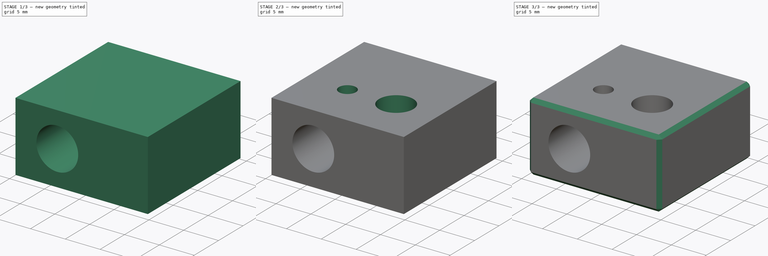
[diagram: build sequence overview — one tinted view per stage of 3, left to right]
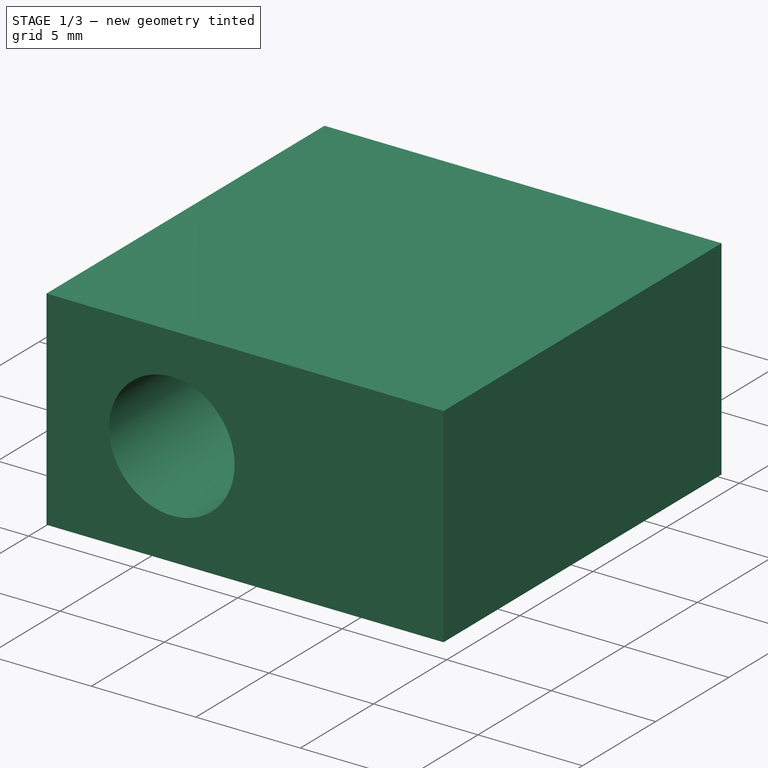
[diagram: stage 1 of 3 — iso view after this stage's code; geometry added in this stage tinted green]
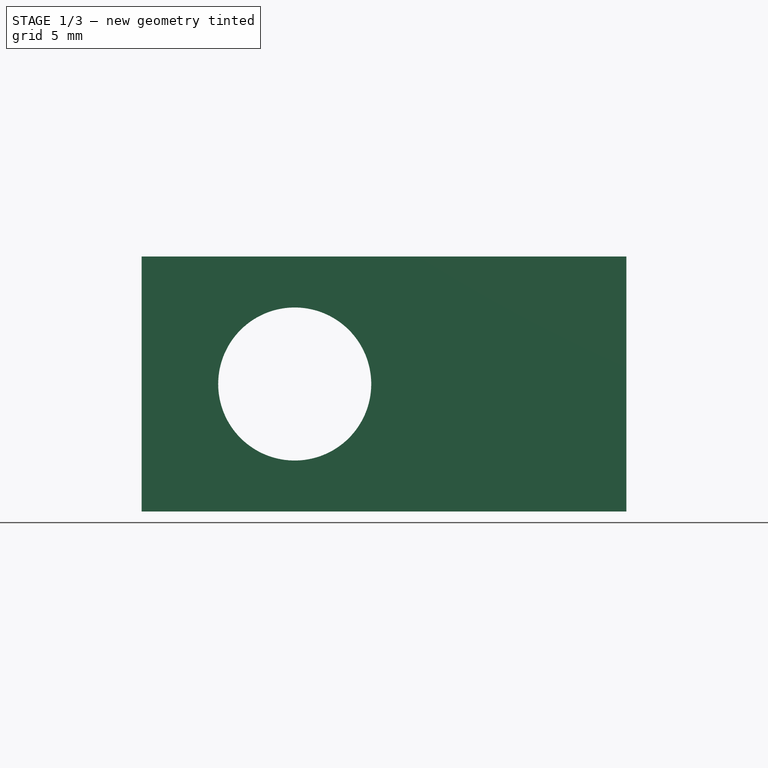
[diagram: stage 1 of 3 — front view after this stage's code; geometry added in this stage tinted green]
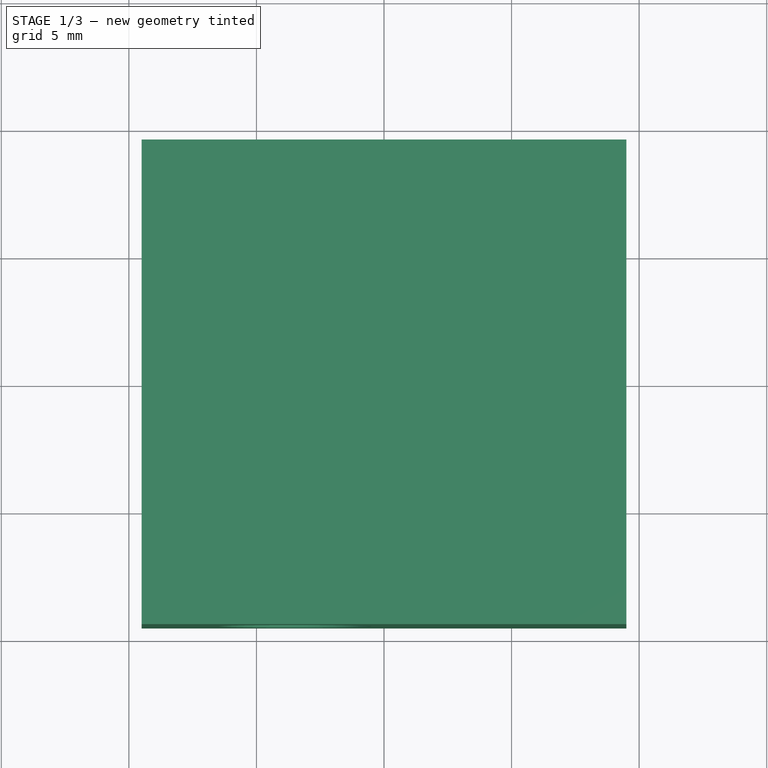
[diagram: stage 1 of 3 — top view after this stage's code; geometry added in this stage tinted green]
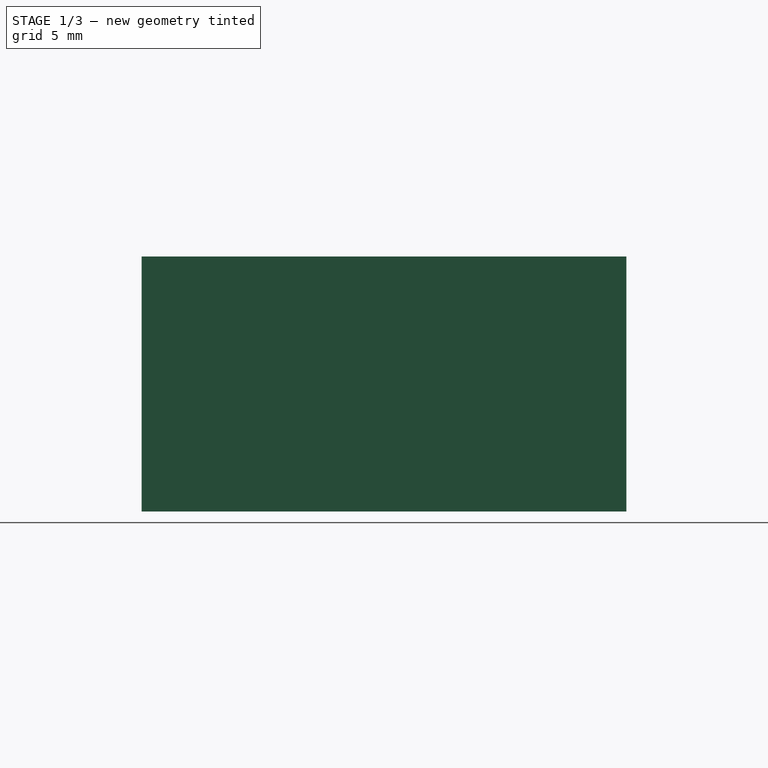
[diagram: stage 1 of 3 — right view after this stage's code; geometry added in this stage tinted green]
FCSTD DOCUMENT  (FreeCAD 0.14R3702 (Git))
Label: hotend-heater-block
License: CC-BY 3.0
LicenseURL: http://creativecommons.org/licenses/by/3.0/
objects: Sketcher::SketchObject×4, PartDesign::Pocket×4, Part::Box×1, Part::Chamfer×1, Part::Feature×1
note: 15 computed .brp shape members not serialized (recipe doc carries the construction recipe); baked Part::Feature solids carry a one-line shape summary decoded from their .brp

FEATURE [Part::Box] Box  label="main-body"
  Height = 10
  Length = 19
  Placement = pos=(-9.5,-9.5,-5) rot=(0,0,1;0rad)
  Width = 19
FEATURE [Sketcher::SketchObject] Sketch  label="heater-cartridge-drill-sketch"
  ExternalGeometry = -> [Box]
  Placement = pos=(-9.5,-9.5,-5) rot=(1,0,0;1.5708rad)
  Support = -> Box [Face3]
  sketch-geometry (3):
    g0: Circle CenterX=6 CenterY=5 CenterZ=0 NormalX=0 NormalY=0 NormalZ=1 Radius=3
    g1: LineSegment [constr] StartX=9.5 StartY=10 StartZ=0 EndX=9.5 EndY=0 EndZ=0
    g2: LineSegment [constr] StartX=6 StartY=5 StartZ=0 EndX=9.5 EndY=5 EndZ=0
  constraints (9):
    c: PointOnObject(g1,g-3)
    c: Symmetric(g-3,g-3,g1)
    c: PointOnObject(g1,g-4)
    c: Horizontal(g2)
    c: PointOnObject(g2,g1)
    c: Symmetric(g1,g1,g2)
    c: DistanceX(g2) = 3.5
    c: Coincident(g0,g2)
    c: Radius(g0) = 3
FEATURE [PartDesign::Pocket] Pocket  label="heater-cartridge-drill"
  Length = 5
  Placement = pos=(-9.5,-9.5,-5) rot=(0,0,1;0rad)
  Sketch = -> Sketch
  Type = 1
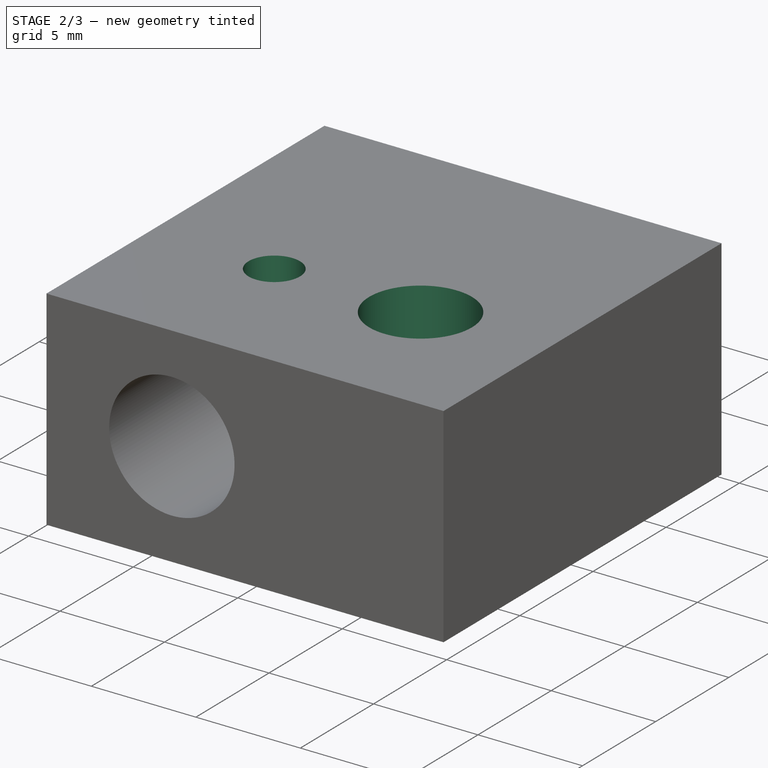
[diagram: stage 2 of 3 — iso view after this stage's code; geometry added in this stage tinted green]
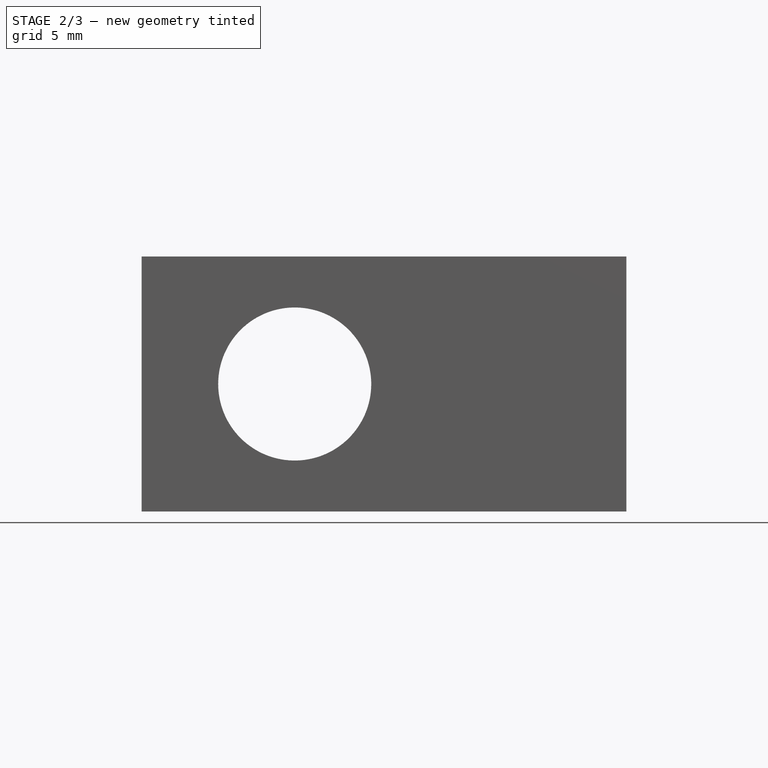
[diagram: stage 2 of 3 — front view after this stage's code; geometry added in this stage tinted green]
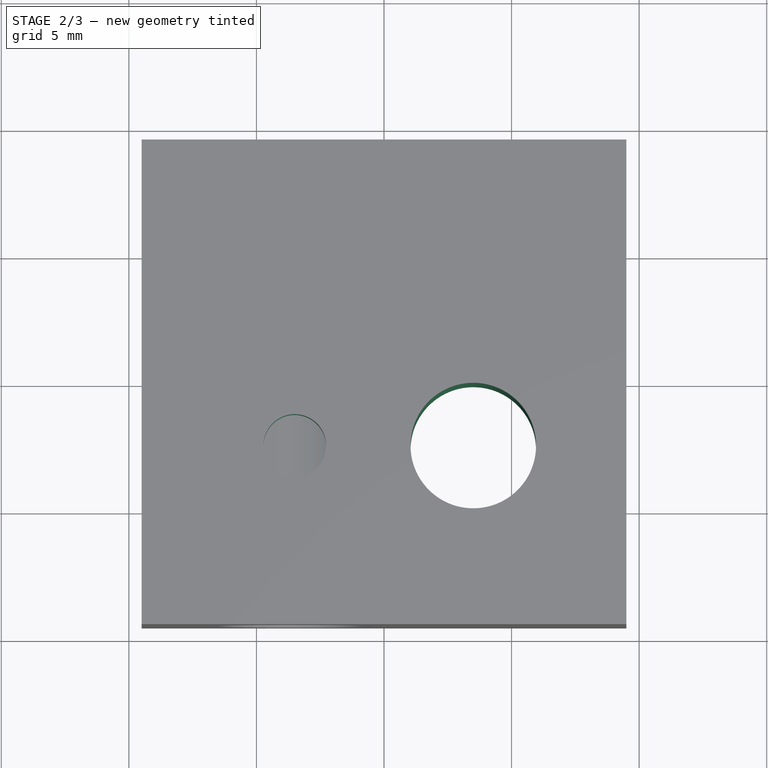
[diagram: stage 2 of 3 — top view after this stage's code; geometry added in this stage tinted green]
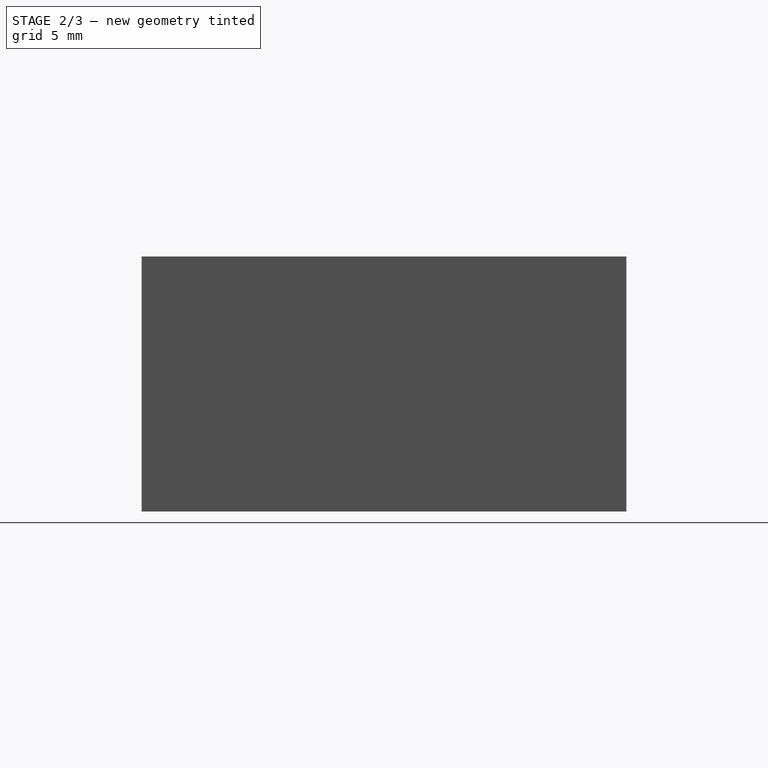
[diagram: stage 2 of 3 — right view after this stage's code; geometry added in this stage tinted green]
FEATURE [Sketcher::SketchObject] Sketch001  label="top-drill-1-sketch"
  ExternalGeometry = -> [Pocket]
  Placement = pos=(-9.5,-9.5,5) rot=(0,0,1;0rad)
  Support = -> Pocket [Face3]
  sketch-geometry (4):
    g0: Circle CenterX=13 CenterY=7 CenterZ=0 NormalX=0 NormalY=0 NormalZ=1 Radius=2.46
    g1: Circle [constr] CenterX=6 CenterY=7 CenterZ=0 NormalX=0 NormalY=0 NormalZ=1 Radius=1.23
    g2: LineSegment [constr] StartX=9.5 StartY=19 StartZ=0 EndX=9.5 EndY=0 EndZ=0
    g3: LineSegment [constr] StartX=0 StartY=9.5 StartZ=0 EndX=19 EndY=9.5 EndZ=0
  constraints (13):
    c: Vertical(g2)
    c: PointOnObject(g2,g-5)
    c: PointOnObject(g2,g-6)
    c: Symmetric(g-5,g-5,g2)
    c: Symmetric(g1,g0,g2)
    c: Horizontal(g3)
    c: PointOnObject(g3,g-3)
    c: PointOnObject(g3,g-4)
    c: Symmetric(g-5,g-1,g3)
    c: DistanceY(g1,g3) = 2.5
    c: DistanceX(g1,g3) = -6
    c: Radius(g0) = 2.46
    c: Radius(g1) = 1.23
FEATURE [PartDesign::Pocket] Pocket001  label="top-drill-1"
  Length = 5
  Placement = pos=(-9.5,-9.5,-5) rot=(0,0,1;0rad)
  Sketch = -> Sketch001
  Type = 1
FEATURE [Sketcher::SketchObject] Sketch002  label="top-drill-2-sketch"
  ExternalGeometry = -> [Pocket]
  Placement = pos=(-9.5,-9.5,5) rot=(0,0,1;0rad)
  Support = -> Pocket001 [Face3]
  sketch-geometry (4):
    g0: Circle [constr] CenterX=13 CenterY=7 CenterZ=0 NormalX=0 NormalY=0 NormalZ=1 Radius=2.46
    g1: Circle CenterX=6 CenterY=7 CenterZ=0 NormalX=0 NormalY=0 NormalZ=1 Radius=1.23
    g2: LineSegment [constr] StartX=9.5 StartY=19 StartZ=0 EndX=9.5 EndY=0 EndZ=0
    g3: LineSegment [constr] StartX=0 StartY=9.5 StartZ=0 EndX=19 EndY=9.5 EndZ=0
  constraints (7):
    c: Vertical(g2)
    c: Symmetric(g1,g0,g2)
    c: Horizontal(g3)
    c: DistanceY(g1,g3) = 2.5
    c: DistanceX(g1,g3) = -6
    c: Radius(g0) = 2.46
    c: Radius(g1) = 1.23
FEATURE [PartDesign::Pocket] Pocket002  label="top-drill-2"
  Length = 5
  Placement = pos=(-9.5,-9.5,-5) rot=(0,0,1;0rad)
  Sketch = -> Sketch002
  Type = 0
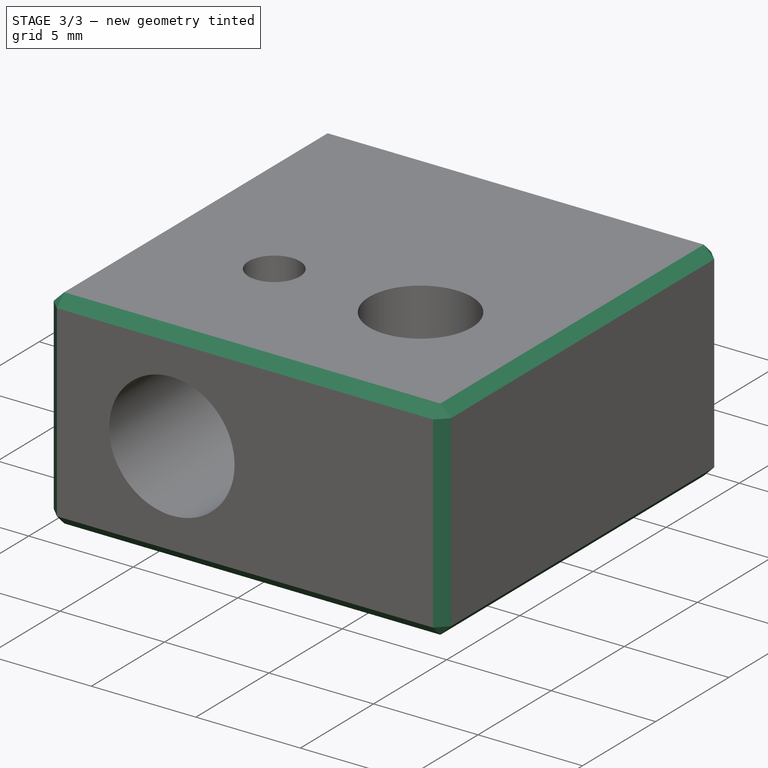
[diagram: stage 3 of 3 — iso view after this stage's code; geometry added in this stage tinted green]
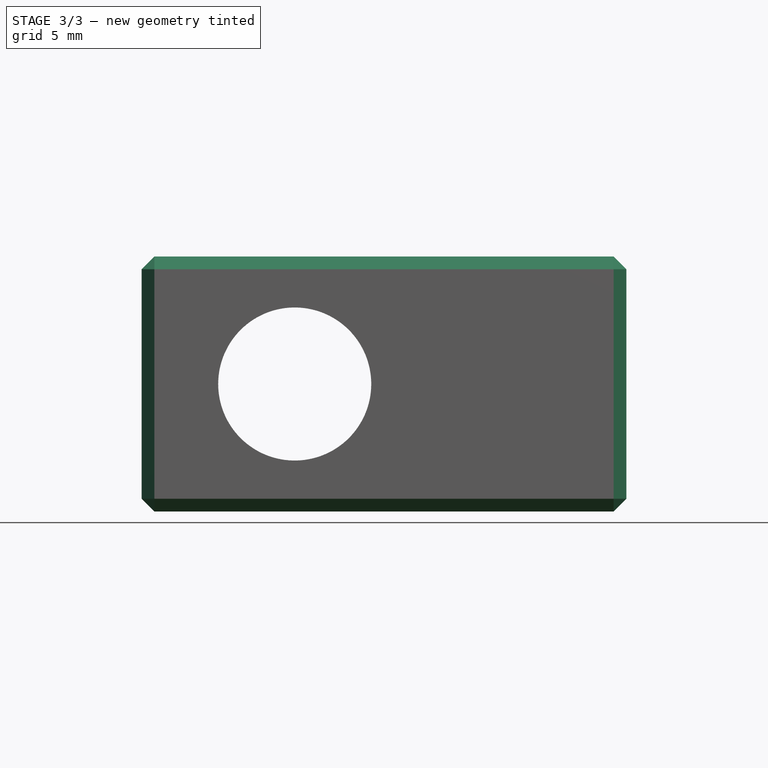
[diagram: stage 3 of 3 — front view after this stage's code; geometry added in this stage tinted green]
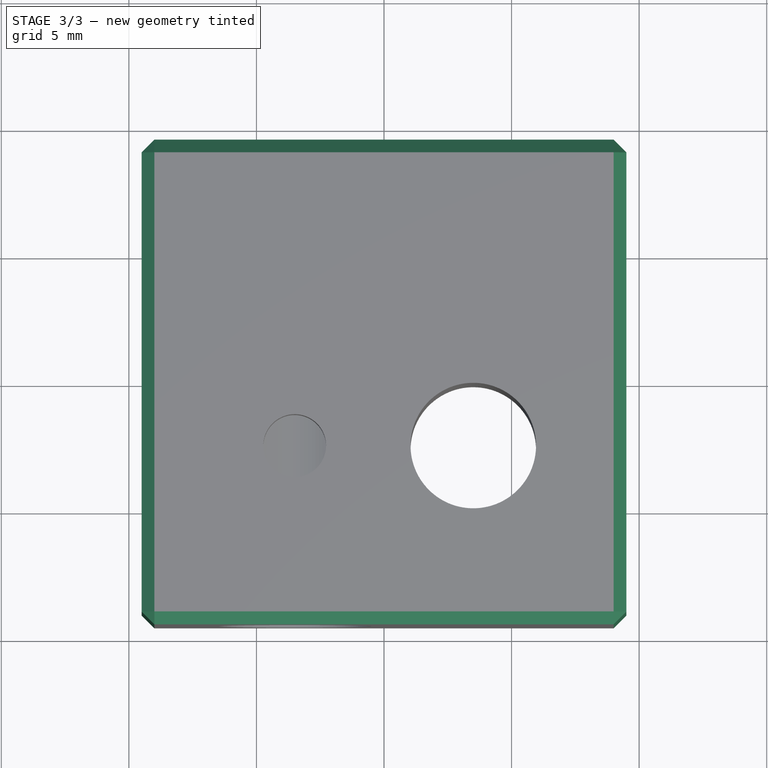
[diagram: stage 3 of 3 — top view after this stage's code; geometry added in this stage tinted green]
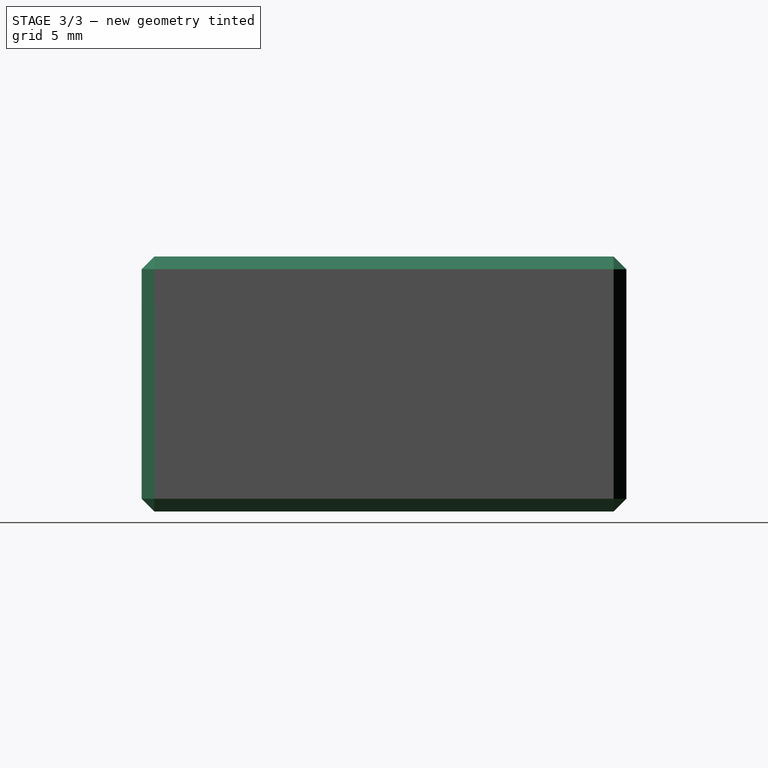
[diagram: stage 3 of 3 — right view after this stage's code; geometry added in this stage tinted green]
FEATURE [Sketcher::SketchObject] Sketch003  label="thermistor-drill-sketch"
  ExternalGeometry = -> [Pocket002]
  Placement = pos=(-9.5,9.5,-5) rot=(0,0.707107,0.707107;3.14159rad)
  Support = -> Pocket002 [Face4]
  sketch-geometry (3):
    g0: Circle CenterX=-13 CenterY=5 CenterZ=0 NormalX=0 NormalY=0 NormalZ=1 Radius=1.23
    g1: LineSegment [constr] StartX=-13 StartY=5 StartZ=0 EndX=-6 EndY=5 EndZ=0
    g2: LineSegment [constr] StartX=-9.5 StartY=10 StartZ=0 EndX=-9.5 EndY=0 EndZ=0
  constraints (8):
    c: Horizontal(g1)
    c: Coincident(g1,g-4)
    c: Coincident(g0,g1)
    c: PointOnObject(g2,g-6)
    c: PointOnObject(g2,g-7)
    c: Symmetric(g-6,g-6,g2)
    c: Symmetric(g0,g1,g2)
    c: Radius(g0) = 1.23
FEATURE [PartDesign::Pocket] Pocket003  label="thermistor-drill"
  Length = 7
  Placement = pos=(-9.5,-9.5,-5) rot=(0,0,1;0rad)
  Sketch = -> Sketch003
  Type = 0
FEATURE [Part::Chamfer] Chamfer
  Base = -> Pocket003
  Edges = 12 edges r=0.5: [Edge1,Edge2,Edge3,Edge4,Edge5,Edge6,Edge7,Edge9,Edge10,Edge13,Edge14,Edge17]
FEATURE [Part::Feature] Chamfer001  label="hotend-heater-block-main"
  shape: bbox 19 x 19 x 10 mm, 31 faces (baked)
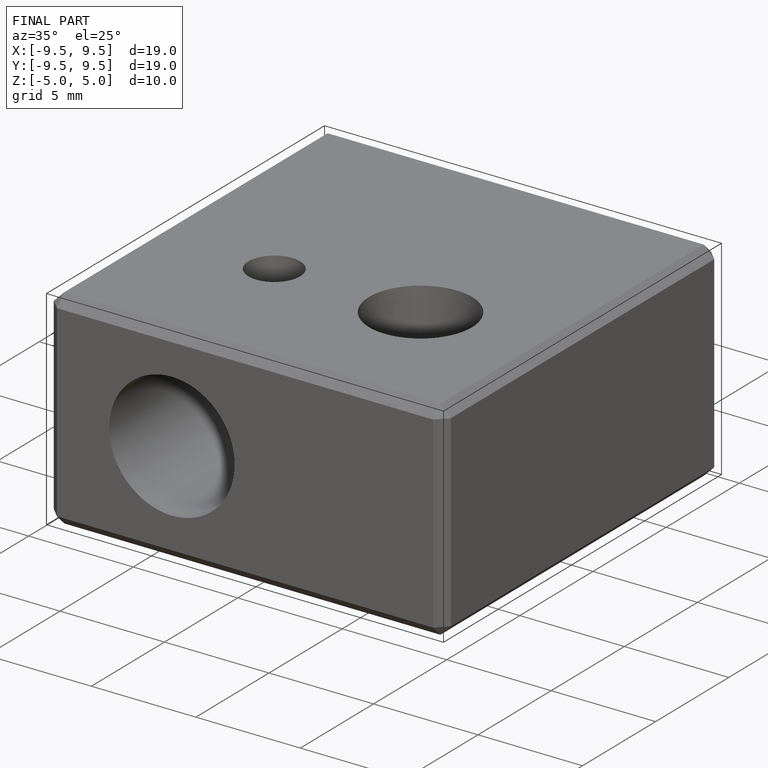
[diagram: finished part — iso view with bounding-box wireframe]
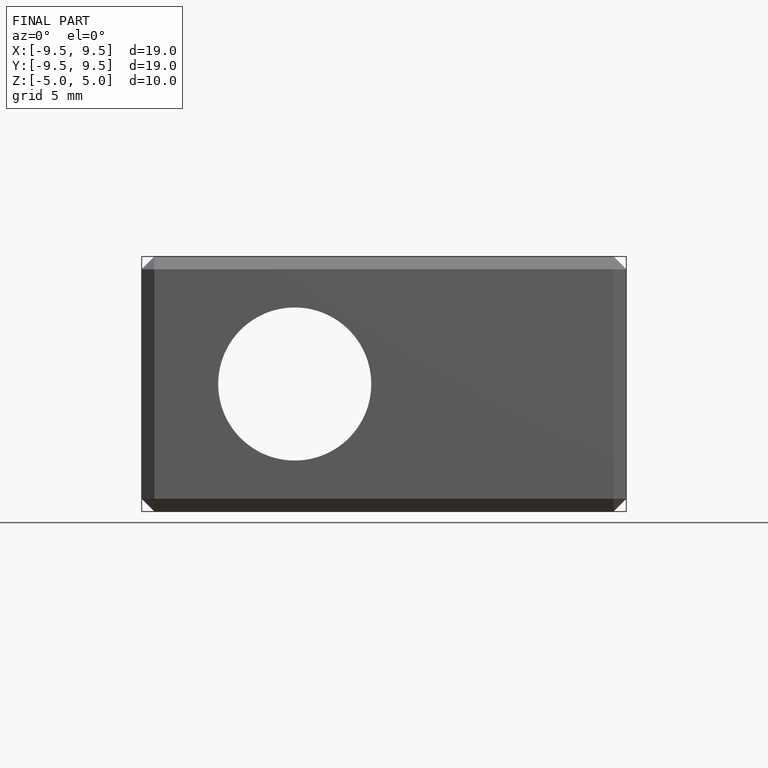
[diagram: finished part — front view with bounding-box wireframe]
